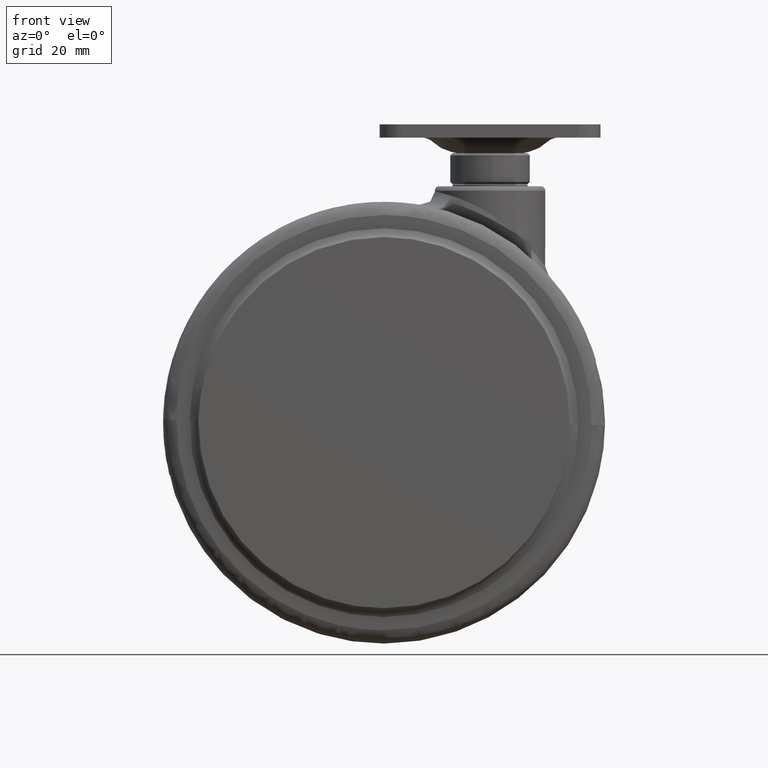
[diagram: clean part render]
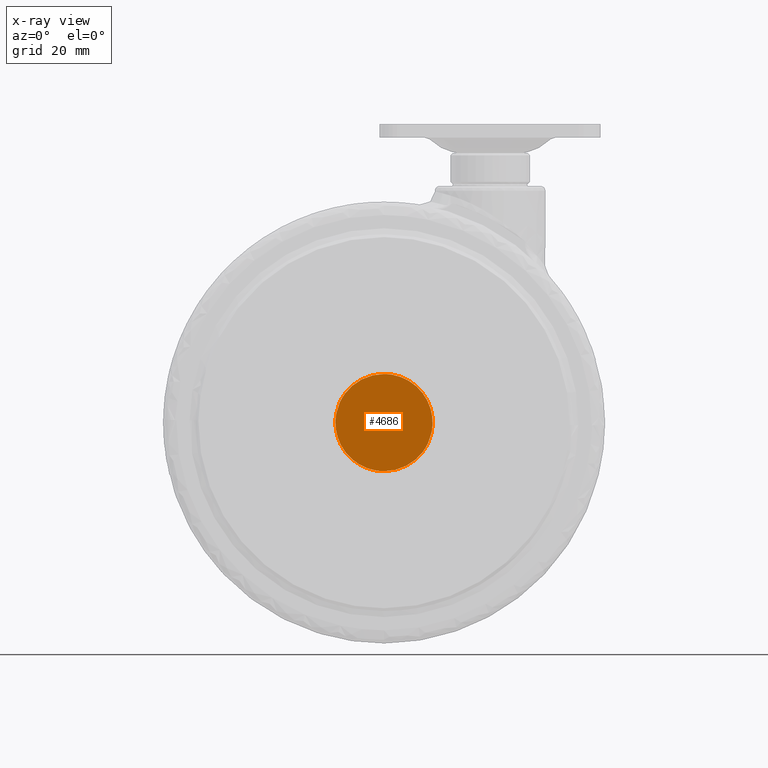
[diagram: x-ray — body ghosted, one internal face saturated and labeled with its STEP entity id]
A machine part, front view, then the same camera in x-ray: the body is ghosted and one INTERNAL B-rep face — a face not visible from any outside direction — is saturated and labeled: STEP entity #4686.
In plain terms, the highlighted face is a freeform B-spline surface patch.
Its self-contained STEP definition (entity closure, byte-faithful):
#4615=CARTESIAN_POINT('',(-36.094184251756232,-9.500000000000000,-65.598899957359734));
#4616=CARTESIAN_POINT('',(-36.094184251756232,-9.500000000000000,-41.401099452554277));
#4617=CARTESIAN_POINT('',(-11.905815748243770,-9.500000000000000,-65.598899957359734));
#4618=CARTESIAN_POINT('',(-11.905815748243770,-9.500000000000000,-41.401099452554277));
#4619=B_SPLINE_SURFACE_WITH_KNOTS('',1,1,((#4615,#4617),(#4616,#4618)),.UNSPECIFIED.,.F.,.F.,.U.,(2,2),(2,2),(0.0,24.197800504805461),(0.0,24.188368503512461),.UNSPECIFIED.);
#4620=CARTESIAN_POINT('',(-34.009573979631703,-9.500000000000000,-48.938374330758840));
#4621=VERTEX_POINT('',#4620);
#4622=CARTESIAN_POINT('',(-24.0,-9.500000000000000,-64.500000000000000));
#4623=VERTEX_POINT('',#4622);
#4624=CARTESIAN_POINT('',(-34.009573979631703,-9.500000000000000,-48.938374330758833));
#4625=CARTESIAN_POINT('',(-35.000000000000007,-9.500000000000000,-51.111665880978869));
#4626=CARTESIAN_POINT('',(-35.0,-9.500000000000000,-53.500000000000000));
#4627=CARTESIAN_POINT('',(-34.999999999999993,-9.500000000000000,-64.500000000000000));
#4628=CARTESIAN_POINT('',(-24.0,-9.500000000000000,-64.500000000000000));
#4636=(BOUNDED_CURVE()B_SPLINE_CURVE(2,(#4624,#4625,#4626,#4627,#4628),.UNSPECIFIED.,.F.,.U.)B_SPLINE_CURVE_WITH_KNOTS((3,2,3),(0.679570116084182,0.750000000000000,1.0),.UNSPECIFIED.)CURVE()GEOMETRIC_REPRESENTATION_ITEM()RATIONAL_B_SPLINE_CURVE((0.881463982734405,0.917486258396953,1.0,0.707106781186548,1.0))REPRESENTATION_ITEM(''));
#4637=EDGE_CURVE('',#4621,#4623,#4636,.T.);
#4638=ORIENTED_EDGE('',*,*,#4637,.F.);
#4639=CARTESIAN_POINT('',(-24.0,-9.500000000000000,-42.499999999999993));
#4640=VERTEX_POINT('',#4639);
#4641=CARTESIAN_POINT('',(-24.0,-9.500000000000000,-42.499999999999993));
#4642=CARTESIAN_POINT('',(-31.075437754140367,-9.500000000000000,-42.499999999999993));
#4643=CARTESIAN_POINT('',(-34.009573979631703,-9.500000000000000,-48.938374330758833));
#4651=(BOUNDED_CURVE()B_SPLINE_CURVE(2,(#4641,#4642,#4643),.UNSPECIFIED.,.F.,.U.)B_SPLINE_CURVE_WITH_KNOTS((3,3),(0.500000000000000,0.679570116084182),.UNSPECIFIED.)CURVE()GEOMETRIC_REPRESENTATION_ITEM()RATIONAL_B_SPLINE_CURVE((1.0,0.789620522789594,0.881463982734405))REPRESENTATION_ITEM(''));
#4652=EDGE_CURVE('',#4640,#4621,#4651,.T.);
#4653=ORIENTED_EDGE('',*,*,#4652,.F.);
#4654=CARTESIAN_POINT('',(-13.990426020368300,-9.500000000000000,-58.061625669241167));
#4655=VERTEX_POINT('',#4654);
#4656=CARTESIAN_POINT('',(-13.990426020368300,-9.499999999999998,-58.061625669241153));
#4657=CARTESIAN_POINT('',(-12.999999999999998,-9.500000000000000,-55.888334119021124));
#4658=CARTESIAN_POINT('',(-13.0,-9.500000000000000,-53.500000000000000));
#4659=CARTESIAN_POINT('',(-13.000000000000004,-9.500000000000000,-42.500000000000000));
#4660=CARTESIAN_POINT('',(-24.0,-9.500000000000000,-42.499999999999993));
#4668=(BOUNDED_CURVE()B_SPLINE_CURVE(2,(#4656,#4657,#4658,#4659,#4660),.UNSPECIFIED.,.F.,.U.)B_SPLINE_CURVE_WITH_KNOTS((3,2,3),(0.179570116084182,0.250000000000000,0.500000000000000),.UNSPECIFIED.)CURVE()GEOMETRIC_REPRESENTATION_ITEM()RATIONAL_B_SPLINE_CURVE((0.881463982734406,0.917486258396953,1.0,0.707106781186548,1.0))REPRESENTATION_ITEM(''));
#4669=EDGE_CURVE('',#4655,#4640,#4668,.T.);
#4670=ORIENTED_EDGE('',*,*,#4669,.F.);
#4671=CARTESIAN_POINT('',(-24.0,-9.500000000000000,-64.500000000000000));
#4672=CARTESIAN_POINT('',(-16.924562245859637,-9.500000000000000,-64.500000000000000));
#4673=CARTESIAN_POINT('',(-13.990426020368304,-9.500000000000000,-58.061625669241167));
#4681=(BOUNDED_CURVE()B_SPLINE_CURVE(2,(#4671,#4672,#4673),.UNSPECIFIED.,.F.,.U.)B_SPLINE_CURVE_WITH_KNOTS((3,3),(0.0,0.179570116084182),.UNSPECIFIED.)CURVE()GEOMETRIC_REPRESENTATION_ITEM()RATIONAL_B_SPLINE_CURVE((1.0,0.789620522789594,0.881463982734405))REPRESENTATION_ITEM(''));
#4682=EDGE_CURVE('',#4623,#4655,#4681,.T.);
#4683=ORIENTED_EDGE('',*,*,#4682,.F.);
#4684=EDGE_LOOP('',(#4638,#4653,#4670,#4683));
#4685=FACE_OUTER_BOUND('',#4684,.T.);
#4686=ADVANCED_FACE('',(#4685),#4619,.T.);